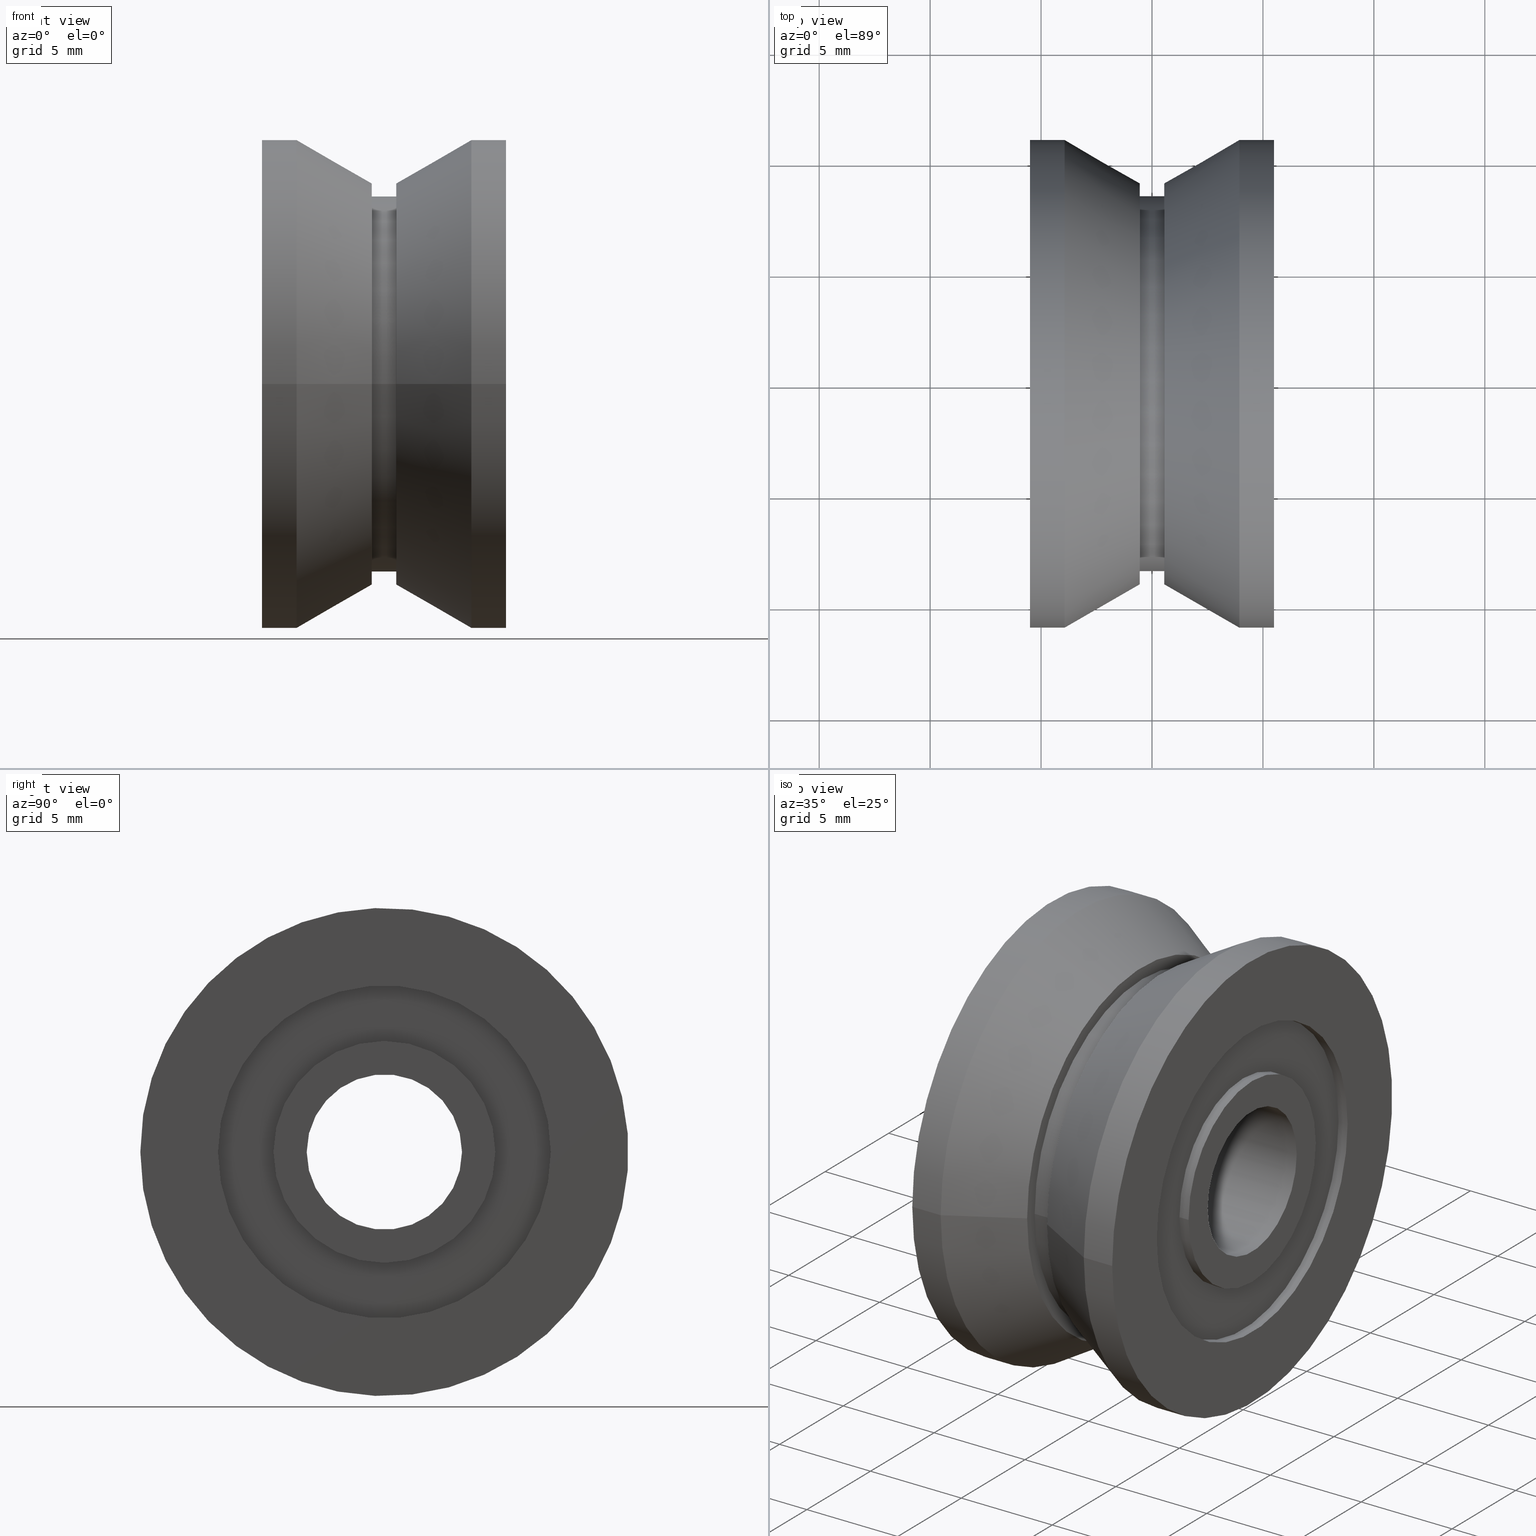
[diagram: canonical four-view strip — front | top / right | iso, engineering-drawing reading convention]
A machine part, canonical four-view strip (front | top / right | iso — engineering-drawing reading convention). The complete STEP part file that produces these views, byte-faithful:
ISO-10303-21;
HEADER;
/* Generated by software containing ST-Developer
 * from STEP Tools, Inc. (www.steptools.com) 
 */

FILE_DESCRIPTION(
/* description */ ('ROTELLA DI=7 DE=22 SP=11 DT=10'),
/* implementation_level */ '2;1');

FILE_NAME(
/* name */ 'C:\\Users\\tecnico7\\Desktop\\80RT00013R-A.stp',
/* time_stamp */ '2022-07-20T09:59:32+02:00',
/* author */ ('tecnico7'),
/* organization */ (''),
/* preprocessor_version */ 'ST-DEVELOPER v18.1',
/* originating_system */ 'Autodesk Inventor 2022',
/* authorisation */ '');

FILE_SCHEMA (('AUTOMOTIVE_DESIGN { 1 0 10303 214 3 1 1 }'));
ENDSEC;

DATA;
#10=MECHANICAL_DESIGN_GEOMETRIC_PRESENTATION_REPRESENTATION('',(#13),#454);
#11=SHAPE_REPRESENTATION_RELATIONSHIP('SRR','None',#461,#12);
#12=ADVANCED_BREP_SHAPE_REPRESENTATION('',(#14),#453);
#13=STYLED_ITEM('',(#470),#14);
#14=MANIFOLD_SOLID_BREP('Solido1',#243);
#15=CONICAL_SURFACE('',#279,10.022019978079,0.523598775598303);
#16=CONICAL_SURFACE('',#287,10.022019978079,0.523598775598295);
#17=LINE('',#395,#27);
#18=LINE('',#401,#28);
#19=LINE('',#409,#29);
#20=LINE('',#413,#30);
#21=LINE('',#420,#31);
#22=LINE('',#427,#32);
#23=LINE('',#431,#33);
#24=LINE('',#437,#34);
#25=LINE('',#445,#35);
#26=LINE('',#450,#36);
#27=VECTOR('',#314,5.);
#28=VECTOR('',#321,7.5);
#29=VECTOR('',#332,11.);
#30=VECTOR('',#337,10.022019978079);
#31=VECTOR('',#346,8.45);
#32=VECTOR('',#355,10.022019978079);
#33=VECTOR('',#360,11.);
#34=VECTOR('',#367,7.5);
#35=VECTOR('',#378,5.);
#36=VECTOR('',#385,3.5);
#37=CYLINDRICAL_SURFACE('',#269,5.);
#38=CYLINDRICAL_SURFACE('',#273,7.5);
#39=CYLINDRICAL_SURFACE('',#277,11.);
#40=CYLINDRICAL_SURFACE('',#283,8.45);
#41=CYLINDRICAL_SURFACE('',#289,11.);
#42=CYLINDRICAL_SURFACE('',#293,7.5);
#43=CYLINDRICAL_SURFACE('',#297,5.);
#44=CYLINDRICAL_SURFACE('',#301,3.5);
#45=FACE_BOUND('',#72,.T.);
#46=FACE_BOUND('',#75,.T.);
#47=FACE_BOUND('',#78,.T.);
#48=FACE_BOUND('',#82,.T.);
#49=FACE_BOUND('',#85,.T.);
#50=FACE_BOUND('',#89,.T.);
#51=FACE_BOUND('',#92,.T.);
#52=FACE_BOUND('',#95,.T.);
#53=FACE_OUTER_BOUND('',#71,.T.);
#54=FACE_OUTER_BOUND('',#73,.T.);
#55=FACE_OUTER_BOUND('',#74,.T.);
#56=FACE_OUTER_BOUND('',#76,.T.);
#57=FACE_OUTER_BOUND('',#77,.T.);
#58=FACE_OUTER_BOUND('',#79,.T.);
#59=FACE_OUTER_BOUND('',#80,.T.);
#60=FACE_OUTER_BOUND('',#81,.T.);
#61=FACE_OUTER_BOUND('',#83,.T.);
#62=FACE_OUTER_BOUND('',#84,.T.);
#63=FACE_OUTER_BOUND('',#86,.T.);
#64=FACE_OUTER_BOUND('',#87,.T.);
#65=FACE_OUTER_BOUND('',#88,.T.);
#66=FACE_OUTER_BOUND('',#90,.T.);
#67=FACE_OUTER_BOUND('',#91,.T.);
#68=FACE_OUTER_BOUND('',#93,.T.);
#69=FACE_OUTER_BOUND('',#94,.T.);
#70=FACE_OUTER_BOUND('',#96,.T.);
#71=EDGE_LOOP('',(#161));
#72=EDGE_LOOP('',(#162));
#73=EDGE_LOOP('',(#163,#164,#165,#166));
#74=EDGE_LOOP('',(#167));
#75=EDGE_LOOP('',(#168));
#76=EDGE_LOOP('',(#169,#170,#171,#172));
#77=EDGE_LOOP('',(#173));
#78=EDGE_LOOP('',(#174));
#79=EDGE_LOOP('',(#175,#176,#177,#178));
#80=EDGE_LOOP('',(#179,#180,#181,#182));
#81=EDGE_LOOP('',(#183));
#82=EDGE_LOOP('',(#184));
#83=EDGE_LOOP('',(#185,#186,#187,#188));
#84=EDGE_LOOP('',(#189));
#85=EDGE_LOOP('',(#190));
#86=EDGE_LOOP('',(#191,#192,#193,#194));
#87=EDGE_LOOP('',(#195,#196,#197,#198));
#88=EDGE_LOOP('',(#199));
#89=EDGE_LOOP('',(#200));
#90=EDGE_LOOP('',(#201,#202,#203,#204));
#91=EDGE_LOOP('',(#205));
#92=EDGE_LOOP('',(#206));
#93=EDGE_LOOP('',(#207,#208,#209,#210));
#94=EDGE_LOOP('',(#211));
#95=EDGE_LOOP('',(#212));
#96=EDGE_LOOP('',(#213,#214,#215,#216));
#97=CIRCLE('',#267,5.);
#98=CIRCLE('',#268,3.5);
#99=CIRCLE('',#270,5.);
#100=CIRCLE('',#272,7.5);
#101=CIRCLE('',#274,7.5);
#102=CIRCLE('',#276,11.);
#103=CIRCLE('',#278,11.);
#104=CIRCLE('',#280,9.04403995615804);
#105=CIRCLE('',#282,8.45);
#106=CIRCLE('',#284,8.45);
#107=CIRCLE('',#286,9.04403995615804);
#108=CIRCLE('',#288,11.);
#109=CIRCLE('',#290,11.);
#110=CIRCLE('',#292,7.5);
#111=CIRCLE('',#294,7.5);
#112=CIRCLE('',#296,5.);
#113=CIRCLE('',#298,5.);
#114=CIRCLE('',#300,3.5);
#115=VERTEX_POINT('',#388);
#116=VERTEX_POINT('',#390);
#117=VERTEX_POINT('',#393);
#118=VERTEX_POINT('',#397);
#119=VERTEX_POINT('',#400);
#120=VERTEX_POINT('',#404);
#121=VERTEX_POINT('',#407);
#122=VERTEX_POINT('',#411);
#123=VERTEX_POINT('',#415);
#124=VERTEX_POINT('',#418);
#125=VERTEX_POINT('',#422);
#126=VERTEX_POINT('',#425);
#127=VERTEX_POINT('',#429);
#128=VERTEX_POINT('',#433);
#129=VERTEX_POINT('',#436);
#130=VERTEX_POINT('',#440);
#131=VERTEX_POINT('',#443);
#132=VERTEX_POINT('',#447);
#133=EDGE_CURVE('',#115,#115,#97,.T.);
#134=EDGE_CURVE('',#116,#116,#98,.T.);
#135=EDGE_CURVE('',#117,#117,#99,.T.);
#136=EDGE_CURVE('',#117,#115,#17,.T.);
#137=EDGE_CURVE('',#118,#118,#100,.T.);
#138=EDGE_CURVE('',#118,#119,#18,.T.);
#139=EDGE_CURVE('',#119,#119,#101,.T.);
#140=EDGE_CURVE('',#120,#120,#102,.T.);
#141=EDGE_CURVE('',#121,#121,#103,.T.);
#142=EDGE_CURVE('',#121,#120,#19,.T.);
#143=EDGE_CURVE('',#122,#122,#104,.T.);
#144=EDGE_CURVE('',#122,#121,#20,.T.);
#145=EDGE_CURVE('',#123,#123,#105,.T.);
#146=EDGE_CURVE('',#124,#124,#106,.T.);
#147=EDGE_CURVE('',#124,#123,#21,.T.);
#148=EDGE_CURVE('',#125,#125,#107,.T.);
#149=EDGE_CURVE('',#126,#126,#108,.T.);
#150=EDGE_CURVE('',#126,#125,#22,.T.);
#151=EDGE_CURVE('',#127,#127,#109,.T.);
#152=EDGE_CURVE('',#127,#126,#23,.T.);
#153=EDGE_CURVE('',#128,#128,#110,.T.);
#154=EDGE_CURVE('',#128,#129,#24,.T.);
#155=EDGE_CURVE('',#129,#129,#111,.T.);
#156=EDGE_CURVE('',#130,#130,#112,.T.);
#157=EDGE_CURVE('',#131,#131,#113,.T.);
#158=EDGE_CURVE('',#131,#130,#25,.T.);
#159=EDGE_CURVE('',#132,#132,#114,.T.);
#160=EDGE_CURVE('',#132,#116,#26,.T.);
#161=ORIENTED_EDGE('',*,*,#133,.F.);
#162=ORIENTED_EDGE('',*,*,#134,.T.);
#163=ORIENTED_EDGE('',*,*,#135,.F.);
#164=ORIENTED_EDGE('',*,*,#136,.T.);
#165=ORIENTED_EDGE('',*,*,#133,.T.);
#166=ORIENTED_EDGE('',*,*,#136,.F.);
#167=ORIENTED_EDGE('',*,*,#137,.F.);
#168=ORIENTED_EDGE('',*,*,#135,.T.);
#169=ORIENTED_EDGE('',*,*,#137,.T.);
#170=ORIENTED_EDGE('',*,*,#138,.T.);
#171=ORIENTED_EDGE('',*,*,#139,.F.);
#172=ORIENTED_EDGE('',*,*,#138,.F.);
#173=ORIENTED_EDGE('',*,*,#140,.F.);
#174=ORIENTED_EDGE('',*,*,#139,.T.);
#175=ORIENTED_EDGE('',*,*,#141,.F.);
#176=ORIENTED_EDGE('',*,*,#142,.T.);
#177=ORIENTED_EDGE('',*,*,#140,.T.);
#178=ORIENTED_EDGE('',*,*,#142,.F.);
#179=ORIENTED_EDGE('',*,*,#143,.F.);
#180=ORIENTED_EDGE('',*,*,#144,.T.);
#181=ORIENTED_EDGE('',*,*,#141,.T.);
#182=ORIENTED_EDGE('',*,*,#144,.F.);
#183=ORIENTED_EDGE('',*,*,#143,.T.);
#184=ORIENTED_EDGE('',*,*,#145,.F.);
#185=ORIENTED_EDGE('',*,*,#146,.F.);
#186=ORIENTED_EDGE('',*,*,#147,.T.);
#187=ORIENTED_EDGE('',*,*,#145,.T.);
#188=ORIENTED_EDGE('',*,*,#147,.F.);
#189=ORIENTED_EDGE('',*,*,#148,.F.);
#190=ORIENTED_EDGE('',*,*,#146,.T.);
#191=ORIENTED_EDGE('',*,*,#149,.F.);
#192=ORIENTED_EDGE('',*,*,#150,.T.);
#193=ORIENTED_EDGE('',*,*,#148,.T.);
#194=ORIENTED_EDGE('',*,*,#150,.F.);
#195=ORIENTED_EDGE('',*,*,#151,.F.);
#196=ORIENTED_EDGE('',*,*,#152,.T.);
#197=ORIENTED_EDGE('',*,*,#149,.T.);
#198=ORIENTED_EDGE('',*,*,#152,.F.);
#199=ORIENTED_EDGE('',*,*,#151,.T.);
#200=ORIENTED_EDGE('',*,*,#153,.F.);
#201=ORIENTED_EDGE('',*,*,#153,.T.);
#202=ORIENTED_EDGE('',*,*,#154,.T.);
#203=ORIENTED_EDGE('',*,*,#155,.F.);
#204=ORIENTED_EDGE('',*,*,#154,.F.);
#205=ORIENTED_EDGE('',*,*,#155,.T.);
#206=ORIENTED_EDGE('',*,*,#156,.F.);
#207=ORIENTED_EDGE('',*,*,#157,.F.);
#208=ORIENTED_EDGE('',*,*,#158,.T.);
#209=ORIENTED_EDGE('',*,*,#156,.T.);
#210=ORIENTED_EDGE('',*,*,#158,.F.);
#211=ORIENTED_EDGE('',*,*,#157,.T.);
#212=ORIENTED_EDGE('',*,*,#159,.F.);
#213=ORIENTED_EDGE('',*,*,#159,.T.);
#214=ORIENTED_EDGE('',*,*,#160,.T.);
#215=ORIENTED_EDGE('',*,*,#134,.F.);
#216=ORIENTED_EDGE('',*,*,#160,.F.);
#217=PLANE('',#266);
#218=PLANE('',#271);
#219=PLANE('',#275);
#220=PLANE('',#281);
#221=PLANE('',#285);
#222=PLANE('',#291);
#223=PLANE('',#295);
#224=PLANE('',#299);
#225=ADVANCED_FACE('',(#53,#45),#217,.T.);
#226=ADVANCED_FACE('',(#54),#37,.T.);
#227=ADVANCED_FACE('',(#55,#46),#218,.T.);
#228=ADVANCED_FACE('',(#56),#38,.F.);
#229=ADVANCED_FACE('',(#57,#47),#219,.T.);
#230=ADVANCED_FACE('',(#58),#39,.T.);
#231=ADVANCED_FACE('',(#59),#15,.T.);
#232=ADVANCED_FACE('',(#60,#48),#220,.T.);
#233=ADVANCED_FACE('',(#61),#40,.T.);
#234=ADVANCED_FACE('',(#62,#49),#221,.T.);
#235=ADVANCED_FACE('',(#63),#16,.T.);
#236=ADVANCED_FACE('',(#64),#41,.T.);
#237=ADVANCED_FACE('',(#65,#50),#222,.T.);
#238=ADVANCED_FACE('',(#66),#42,.F.);
#239=ADVANCED_FACE('',(#67,#51),#223,.T.);
#240=ADVANCED_FACE('',(#68),#43,.T.);
#241=ADVANCED_FACE('',(#69,#52),#224,.T.);
#242=ADVANCED_FACE('',(#70),#44,.F.);
#243=CLOSED_SHELL('',(#225,#226,#227,#228,#229,#230,#231,#232,#233,#234,
#235,#236,#237,#238,#239,#240,#241,#242));
#244=DERIVED_UNIT_ELEMENT(#247,1.);
#245=DERIVED_UNIT_ELEMENT(#456,-3.);
#246=DIMENSIONAL_EXPONENTS(1.,0.,0.,0.,0.,0.,0.);
#247=(
CONVERSION_BASED_UNIT('gram',#249)
MASS_UNIT()
NAMED_UNIT(#246)
);
#248=(
MASS_UNIT()
NAMED_UNIT(*)
SI_UNIT(.KILO.,.GRAM.)
);
#249=MASS_MEASURE_WITH_UNIT(MASS_MEASURE(0.001),#248);
#250=DERIVED_UNIT((#244,#245));
#251=MEASURE_REPRESENTATION_ITEM('density measure',
POSITIVE_RATIO_MEASURE(7.87),#250);
#252=PROPERTY_DEFINITION_REPRESENTATION(#257,#254);
#253=PROPERTY_DEFINITION_REPRESENTATION(#258,#255);
#254=REPRESENTATION('material name',(#256),#453);
#255=REPRESENTATION('density',(#251),#453);
#256=DESCRIPTIVE_REPRESENTATION_ITEM('Acciaio al carbonio',
'Acciaio al carbonio');
#257=PROPERTY_DEFINITION('material property','material name',#463);
#258=PROPERTY_DEFINITION('material property','density of part',#463);
#259=DATE_TIME_ROLE('creation_date');
#260=APPLIED_DATE_AND_TIME_ASSIGNMENT(#261,#259,(#463));
#261=DATE_AND_TIME(#262,#263);
#262=CALENDAR_DATE(2012,19,3);
#263=LOCAL_TIME(0,0,0.,#264);
#264=COORDINATED_UNIVERSAL_TIME_OFFSET(0,0,.BEHIND.);
#265=AXIS2_PLACEMENT_3D('placement',#386,#302,#303);
#266=AXIS2_PLACEMENT_3D('',#387,#304,#305);
#267=AXIS2_PLACEMENT_3D('',#389,#306,#307);
#268=AXIS2_PLACEMENT_3D('',#391,#308,#309);
#269=AXIS2_PLACEMENT_3D('',#392,#310,#311);
#270=AXIS2_PLACEMENT_3D('',#394,#312,#313);
#271=AXIS2_PLACEMENT_3D('',#396,#315,#316);
#272=AXIS2_PLACEMENT_3D('',#398,#317,#318);
#273=AXIS2_PLACEMENT_3D('',#399,#319,#320);
#274=AXIS2_PLACEMENT_3D('',#402,#322,#323);
#275=AXIS2_PLACEMENT_3D('',#403,#324,#325);
#276=AXIS2_PLACEMENT_3D('',#405,#326,#327);
#277=AXIS2_PLACEMENT_3D('',#406,#328,#329);
#278=AXIS2_PLACEMENT_3D('',#408,#330,#331);
#279=AXIS2_PLACEMENT_3D('',#410,#333,#334);
#280=AXIS2_PLACEMENT_3D('',#412,#335,#336);
#281=AXIS2_PLACEMENT_3D('',#414,#338,#339);
#282=AXIS2_PLACEMENT_3D('',#416,#340,#341);
#283=AXIS2_PLACEMENT_3D('',#417,#342,#343);
#284=AXIS2_PLACEMENT_3D('',#419,#344,#345);
#285=AXIS2_PLACEMENT_3D('',#421,#347,#348);
#286=AXIS2_PLACEMENT_3D('',#423,#349,#350);
#287=AXIS2_PLACEMENT_3D('',#424,#351,#352);
#288=AXIS2_PLACEMENT_3D('',#426,#353,#354);
#289=AXIS2_PLACEMENT_3D('',#428,#356,#357);
#290=AXIS2_PLACEMENT_3D('',#430,#358,#359);
#291=AXIS2_PLACEMENT_3D('',#432,#361,#362);
#292=AXIS2_PLACEMENT_3D('',#434,#363,#364);
#293=AXIS2_PLACEMENT_3D('',#435,#365,#366);
#294=AXIS2_PLACEMENT_3D('',#438,#368,#369);
#295=AXIS2_PLACEMENT_3D('',#439,#370,#371);
#296=AXIS2_PLACEMENT_3D('',#441,#372,#373);
#297=AXIS2_PLACEMENT_3D('',#442,#374,#375);
#298=AXIS2_PLACEMENT_3D('',#444,#376,#377);
#299=AXIS2_PLACEMENT_3D('',#446,#379,#380);
#300=AXIS2_PLACEMENT_3D('',#448,#381,#382);
#301=AXIS2_PLACEMENT_3D('',#449,#383,#384);
#302=DIRECTION('axis',(0.,0.,1.));
#303=DIRECTION('refdir',(1.,0.,0.));
#304=DIRECTION('center_axis',(-1.,0.,0.));
#305=DIRECTION('ref_axis',(0.,0.,1.));
#306=DIRECTION('center_axis',(1.,0.,0.));
#307=DIRECTION('ref_axis',(0.,1.,0.));
#308=DIRECTION('center_axis',(1.,0.,0.));
#309=DIRECTION('ref_axis',(0.,1.,0.));
#310=DIRECTION('center_axis',(1.,0.,0.));
#311=DIRECTION('ref_axis',(0.,1.,0.));
#312=DIRECTION('center_axis',(1.,0.,0.));
#313=DIRECTION('ref_axis',(0.,1.,0.));
#314=DIRECTION('',(-1.,0.,0.));
#315=DIRECTION('center_axis',(-1.,0.,0.));
#316=DIRECTION('ref_axis',(0.,0.,1.));
#317=DIRECTION('center_axis',(1.,0.,0.));
#318=DIRECTION('ref_axis',(0.,1.,0.));
#319=DIRECTION('center_axis',(1.,0.,0.));
#320=DIRECTION('ref_axis',(0.,1.,0.));
#321=DIRECTION('',(-1.,0.,0.));
#322=DIRECTION('center_axis',(1.,0.,0.));
#323=DIRECTION('ref_axis',(0.,1.,0.));
#324=DIRECTION('center_axis',(-1.,0.,0.));
#325=DIRECTION('ref_axis',(0.,0.,1.));
#326=DIRECTION('center_axis',(1.,0.,0.));
#327=DIRECTION('ref_axis',(0.,1.,0.));
#328=DIRECTION('center_axis',(1.,0.,0.));
#329=DIRECTION('ref_axis',(0.,1.,0.));
#330=DIRECTION('center_axis',(1.,0.,0.));
#331=DIRECTION('ref_axis',(0.,1.,0.));
#332=DIRECTION('',(-1.,0.,0.));
#333=DIRECTION('center_axis',(-1.,0.,0.));
#334=DIRECTION('ref_axis',(0.,1.,0.));
#335=DIRECTION('center_axis',(1.,0.,0.));
#336=DIRECTION('ref_axis',(0.,1.,0.));
#337=DIRECTION('',(-0.866025403784437,-0.500000000000003,-6.12323399573681E-17));
#338=DIRECTION('center_axis',(1.,0.,0.));
#339=DIRECTION('ref_axis',(0.,0.,-1.));
#340=DIRECTION('center_axis',(1.,0.,0.));
#341=DIRECTION('ref_axis',(0.,1.,0.));
#342=DIRECTION('center_axis',(1.,0.,0.));
#343=DIRECTION('ref_axis',(0.,1.,0.));
#344=DIRECTION('center_axis',(1.,0.,0.));
#345=DIRECTION('ref_axis',(0.,1.,0.));
#346=DIRECTION('',(-1.,0.,0.));
#347=DIRECTION('center_axis',(-1.,0.,0.));
#348=DIRECTION('ref_axis',(0.,0.,1.));
#349=DIRECTION('center_axis',(1.,0.,0.));
#350=DIRECTION('ref_axis',(0.,1.,0.));
#351=DIRECTION('center_axis',(1.,0.,0.));
#352=DIRECTION('ref_axis',(0.,1.,0.));
#353=DIRECTION('center_axis',(1.,0.,0.));
#354=DIRECTION('ref_axis',(0.,1.,0.));
#355=DIRECTION('',(-0.866025403784441,0.499999999999997,6.12323399573673E-17));
#356=DIRECTION('center_axis',(1.,0.,0.));
#357=DIRECTION('ref_axis',(0.,1.,0.));
#358=DIRECTION('center_axis',(1.,0.,0.));
#359=DIRECTION('ref_axis',(0.,1.,0.));
#360=DIRECTION('',(-1.,0.,0.));
#361=DIRECTION('center_axis',(1.,0.,0.));
#362=DIRECTION('ref_axis',(0.,0.,-1.));
#363=DIRECTION('center_axis',(1.,0.,0.));
#364=DIRECTION('ref_axis',(0.,1.,0.));
#365=DIRECTION('center_axis',(1.,0.,0.));
#366=DIRECTION('ref_axis',(0.,1.,0.));
#367=DIRECTION('',(-1.,0.,0.));
#368=DIRECTION('center_axis',(1.,0.,0.));
#369=DIRECTION('ref_axis',(0.,1.,0.));
#370=DIRECTION('center_axis',(1.,0.,0.));
#371=DIRECTION('ref_axis',(0.,0.,-1.));
#372=DIRECTION('center_axis',(1.,0.,0.));
#373=DIRECTION('ref_axis',(0.,1.,0.));
#374=DIRECTION('center_axis',(1.,0.,0.));
#375=DIRECTION('ref_axis',(0.,1.,0.));
#376=DIRECTION('center_axis',(1.,0.,0.));
#377=DIRECTION('ref_axis',(0.,1.,0.));
#378=DIRECTION('',(-1.,0.,0.));
#379=DIRECTION('center_axis',(1.,0.,0.));
#380=DIRECTION('ref_axis',(0.,0.,-1.));
#381=DIRECTION('center_axis',(1.,0.,0.));
#382=DIRECTION('ref_axis',(0.,1.,0.));
#383=DIRECTION('center_axis',(1.,0.,0.));
#384=DIRECTION('ref_axis',(0.,1.,0.));
#385=DIRECTION('',(-1.,0.,0.));
#386=CARTESIAN_POINT('',(0.,0.,0.));
#387=CARTESIAN_POINT('Origin',(-5.50000000000001,4.25,0.));
#388=CARTESIAN_POINT('',(-5.50000000000001,-5.,-6.12323399573677E-16));
#389=CARTESIAN_POINT('Origin',(-5.50000000000001,0.,0.));
#390=CARTESIAN_POINT('',(-5.5,-3.5,-4.28626379701574E-16));
#391=CARTESIAN_POINT('Origin',(-5.5,0.,0.));
#392=CARTESIAN_POINT('Origin',(-5.25000000000001,0.,0.));
#393=CARTESIAN_POINT('',(-5.00000000000001,-5.,-6.12323399573677E-16));
#394=CARTESIAN_POINT('Origin',(-5.00000000000001,0.,0.));
#395=CARTESIAN_POINT('',(-5.25000000000001,-5.,-6.12323399573677E-16));
#396=CARTESIAN_POINT('Origin',(-5.00000000000001,6.25,0.));
#397=CARTESIAN_POINT('',(-5.00000000000001,-7.5,-9.18485099360515E-16));
#398=CARTESIAN_POINT('Origin',(-5.00000000000001,0.,0.));
#399=CARTESIAN_POINT('Origin',(-5.25000000000001,0.,0.));
#400=CARTESIAN_POINT('',(-5.50000000000001,-7.5,-9.18485099360515E-16));
#401=CARTESIAN_POINT('',(-5.25000000000001,-7.5,-9.18485099360515E-16));
#402=CARTESIAN_POINT('Origin',(-5.50000000000001,0.,0.));
#403=CARTESIAN_POINT('Origin',(-5.50000000000001,9.25,0.));
#404=CARTESIAN_POINT('',(-5.50000000000001,-11.,-1.34711147906209E-15));
#405=CARTESIAN_POINT('Origin',(-5.50000000000001,0.,0.));
#406=CARTESIAN_POINT('Origin',(-4.71891108675445,0.,0.));
#407=CARTESIAN_POINT('',(-3.9378221735089,-11.,-1.34711147906209E-15));
#408=CARTESIAN_POINT('Origin',(-3.9378221735089,0.,0.));
#409=CARTESIAN_POINT('',(-4.71891108675445,-11.,-1.34711147906209E-15));
#410=CARTESIAN_POINT('Origin',(-2.24391108675445,0.,0.));
#411=CARTESIAN_POINT('',(-0.549999999999999,-9.04403995615804,-1.10757545836697E-15));
#412=CARTESIAN_POINT('Origin',(-0.55,0.,0.));
#413=CARTESIAN_POINT('',(-2.24391108675445,-10.022019978079,-1.22734346871453E-15));
#414=CARTESIAN_POINT('Origin',(-0.55,8.74701997807902,0.));
#415=CARTESIAN_POINT('',(-0.55,-8.45,-1.03482654527951E-15));
#416=CARTESIAN_POINT('Origin',(-0.55,0.,0.));
#417=CARTESIAN_POINT('Origin',(0.,0.,0.));
#418=CARTESIAN_POINT('',(0.55,-8.45,-1.03482654527951E-15));
#419=CARTESIAN_POINT('Origin',(0.55,0.,0.));
#420=CARTESIAN_POINT('',(0.,-8.45,-1.03482654527951E-15));
#421=CARTESIAN_POINT('Origin',(0.55,8.74701997807902,0.));
#422=CARTESIAN_POINT('',(0.55,-9.04403995615804,-1.10757545836697E-15));
#423=CARTESIAN_POINT('Origin',(0.55,0.,0.));
#424=CARTESIAN_POINT('Origin',(2.24391108675448,0.,0.));
#425=CARTESIAN_POINT('',(3.93782217350896,-11.,-1.34711147906209E-15));
#426=CARTESIAN_POINT('Origin',(3.93782217350896,0.,0.));
#427=CARTESIAN_POINT('',(2.24391108675448,-10.022019978079,-1.22734346871453E-15));
#428=CARTESIAN_POINT('Origin',(4.71891108675448,0.,0.));
#429=CARTESIAN_POINT('',(5.5,-11.,-1.34711147906209E-15));
#430=CARTESIAN_POINT('Origin',(5.5,0.,0.));
#431=CARTESIAN_POINT('',(4.71891108675448,-11.,-1.34711147906209E-15));
#432=CARTESIAN_POINT('Origin',(5.5,9.25,0.));
#433=CARTESIAN_POINT('',(5.5,-7.5,-9.18485099360515E-16));
#434=CARTESIAN_POINT('Origin',(5.5,0.,0.));
#435=CARTESIAN_POINT('Origin',(5.25,0.,0.));
#436=CARTESIAN_POINT('',(5.,-7.5,-9.18485099360515E-16));
#437=CARTESIAN_POINT('',(5.25,-7.5,-9.18485099360515E-16));
#438=CARTESIAN_POINT('Origin',(5.,0.,0.));
#439=CARTESIAN_POINT('Origin',(5.,6.25,0.));
#440=CARTESIAN_POINT('',(5.,-5.,-6.12323399573677E-16));
#441=CARTESIAN_POINT('Origin',(5.,0.,0.));
#442=CARTESIAN_POINT('Origin',(5.25,0.,0.));
#443=CARTESIAN_POINT('',(5.5,-5.,-6.12323399573677E-16));
#444=CARTESIAN_POINT('Origin',(5.5,0.,0.));
#445=CARTESIAN_POINT('',(5.25,-5.,-6.12323399573677E-16));
#446=CARTESIAN_POINT('Origin',(5.5,4.25,0.));
#447=CARTESIAN_POINT('',(5.5,-3.5,-4.28626379701574E-16));
#448=CARTESIAN_POINT('Origin',(5.5,0.,0.));
#449=CARTESIAN_POINT('Origin',(-4.44089209850063E-15,0.,0.));
#450=CARTESIAN_POINT('',(-4.44089209850063E-15,-3.5,-4.28626379701574E-16));
#451=UNCERTAINTY_MEASURE_WITH_UNIT(LENGTH_MEASURE(0.01),#455,
'DISTANCE_ACCURACY_VALUE',
'Maximum model space distance between geometric entities at asserted c
onnectivities');
#452=UNCERTAINTY_MEASURE_WITH_UNIT(LENGTH_MEASURE(0.01),#455,
'DISTANCE_ACCURACY_VALUE',
'Maximum model space distance between geometric entities at asserted c
onnectivities');
#453=(
GEOMETRIC_REPRESENTATION_CONTEXT(3)
GLOBAL_UNCERTAINTY_ASSIGNED_CONTEXT((#451))
GLOBAL_UNIT_ASSIGNED_CONTEXT((#455,#457,#458))
REPRESENTATION_CONTEXT('','3D')
);
#454=(
GEOMETRIC_REPRESENTATION_CONTEXT(3)
GLOBAL_UNCERTAINTY_ASSIGNED_CONTEXT((#452))
GLOBAL_UNIT_ASSIGNED_CONTEXT((#455,#457,#458))
REPRESENTATION_CONTEXT('','3D')
);
#455=(
LENGTH_UNIT()
NAMED_UNIT(*)
SI_UNIT(.MILLI.,.METRE.)
);
#456=(
LENGTH_UNIT()
NAMED_UNIT(*)
SI_UNIT(.CENTI.,.METRE.)
);
#457=(
NAMED_UNIT(*)
PLANE_ANGLE_UNIT()
SI_UNIT($,.RADIAN.)
);
#458=(
NAMED_UNIT(*)
SI_UNIT($,.STERADIAN.)
SOLID_ANGLE_UNIT()
);
#459=SHAPE_DEFINITION_REPRESENTATION(#460,#461);
#460=PRODUCT_DEFINITION_SHAPE('',$,#463);
#461=SHAPE_REPRESENTATION('',(#265),#453);
#462=PRODUCT_DEFINITION_CONTEXT('part definition',#467,'design');
#463=PRODUCT_DEFINITION('80RT00013R-A','80RT00013R-A',#464,#462);
#464=PRODUCT_DEFINITION_FORMATION('A',$,#469);
#465=PRODUCT_RELATED_PRODUCT_CATEGORY('80RT00013R-A','80RT00013R-A',(#469));
#466=APPLICATION_PROTOCOL_DEFINITION('international standard',
'automotive_design',2009,#467);
#467=APPLICATION_CONTEXT(
'Core Data for Automotive Mechanical Design Process');
#468=PRODUCT_CONTEXT('part definition',#467,'mechanical');
#469=PRODUCT('80RT00013R-A','80RT00013R-A',
'ROTELLA DI=7 DE=22 SP=11 DT=10',(#468));
#470=PRESENTATION_STYLE_ASSIGNMENT((#471));
#471=SURFACE_STYLE_USAGE(.BOTH.,#474);
#472=SURFACE_STYLE_RENDERING_WITH_PROPERTIES($,#478,(#473));
#473=SURFACE_STYLE_TRANSPARENT(0.);
#474=SURFACE_SIDE_STYLE('',(#475,#472));
#475=SURFACE_STYLE_FILL_AREA(#476);
#476=FILL_AREA_STYLE('',(#477));
#477=FILL_AREA_STYLE_COLOUR('',#478);
#478=COLOUR_RGB('',0.87843137254902,0.874509803921569,0.858823529411765);
ENDSEC;
END-ISO-10303-21;
